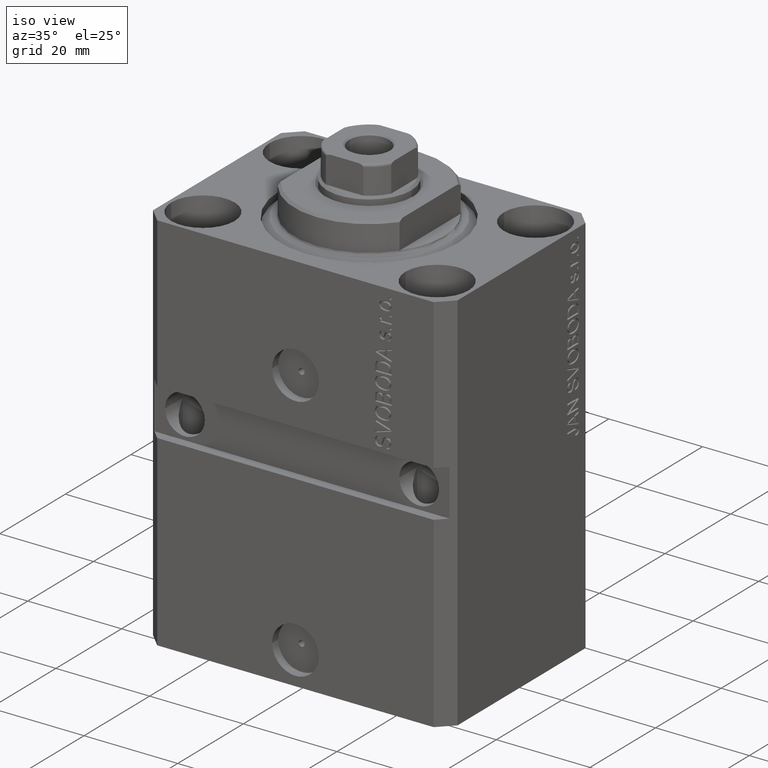
[diagram: clean part render]
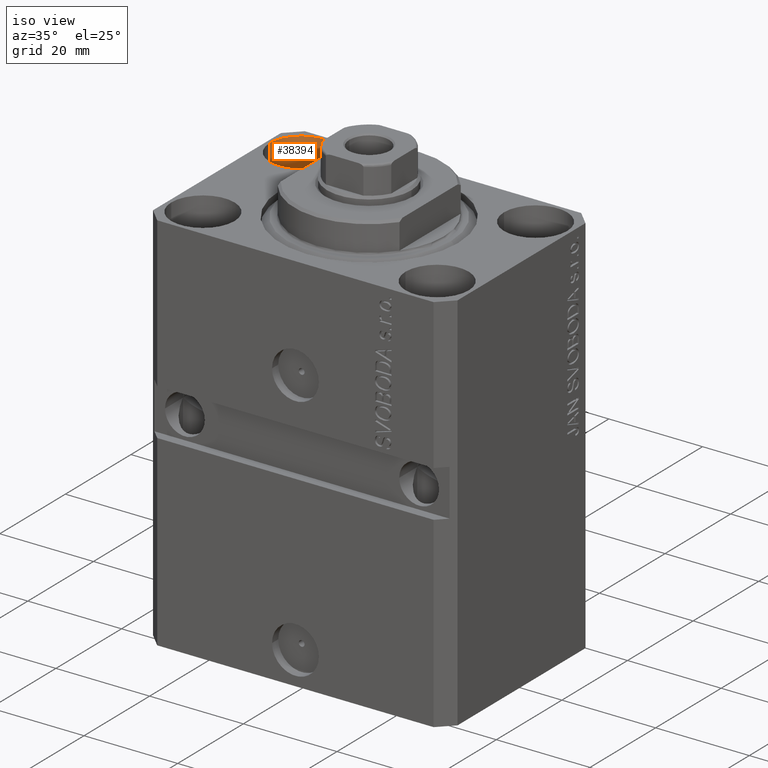
[diagram: same view with one face highlighted and labeled with its STEP entity id]
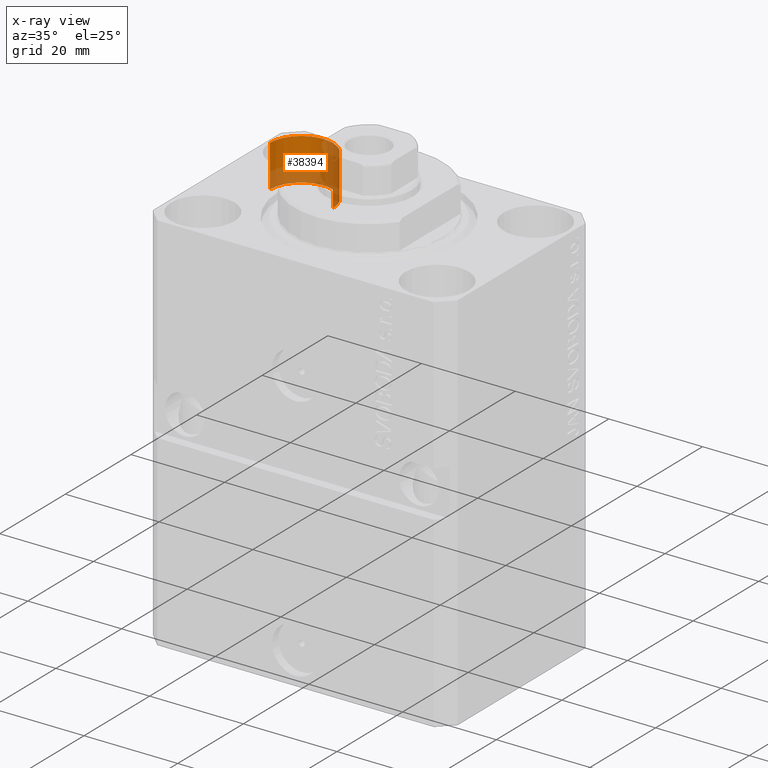
[diagram: x-ray of the same camera — body ghosted, the highlighted face saturated]
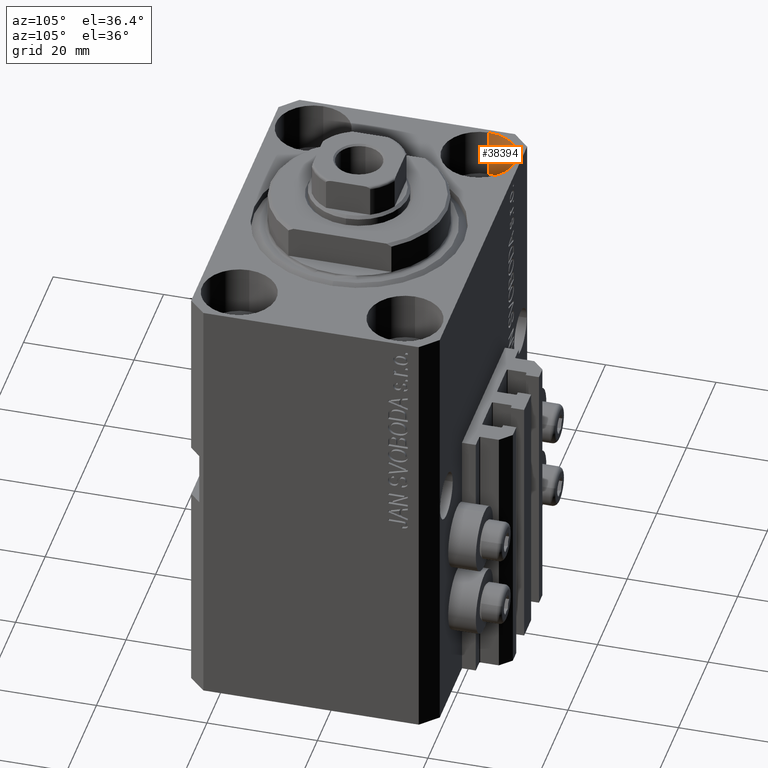
[diagram: same view with one face highlighted and labeled with its STEP entity id]
A machine part, iso view. The second image highlights one B-rep face of the part: STEP entity #38394.
The next image is the same camera in x-ray: the body ghosted, the highlighted face saturated — about 56% of this face is hidden behind the body in this view.
A second angle (auxiliary view) of the same face is appended — the face is thin or edge-on in the first view.
In plain terms, the highlighted cylindrical surface (partial cylindrical patch) has radius 6.75 mm, axis along (0, 0, 1).
Its self-contained STEP definition (entity closure, byte-faithful):
#208 = CARTESIAN_POINT ( 'NONE',  ( -25.00000000000000355, 15.00000000000000000, -9.000000000000000000 ) ) ;
#2404 = AXIS2_PLACEMENT_3D ( 'NONE', #41023, #45321, #12635 ) ;
#5400 = DIRECTION ( 'NONE',  ( -0.000000000000000000, -0.000000000000000000, 1.000000000000000000 ) ) ;
#11221 = ORIENTED_EDGE ( 'NONE', *, *, #34646, .F. ) ;
#11373 = VERTEX_POINT ( 'NONE', #27063 ) ;
#12635 = DIRECTION ( 'NONE',  ( 1.000000000000000000, 0.000000000000000000, 0.000000000000000000 ) ) ;
#13074 = DIRECTION ( 'NONE',  ( 0.000000000000000000, 0.000000000000000000, 1.000000000000000000 ) ) ;
#13114 = CIRCLE ( 'NONE', #45120, 6.750000000022533087 ) ;
#14310 = DIRECTION ( 'NONE',  ( 0.000000000000000000, 0.000000000000000000, 1.000000000000000000 ) ) ;
#14709 = ORIENTED_EDGE ( 'NONE', *, *, #32206, .F. ) ;
#16871 = DIRECTION ( 'NONE',  ( 1.000000000000000000, 0.000000000000000000, 0.000000000000000000 ) ) ;
#21509 = VERTEX_POINT ( 'NONE', #47065 ) ;
#23435 = CARTESIAN_POINT ( 'NONE',  ( -18.24999999997747224, 15.00000000000000000, -9.000000000000000000 ) ) ;
#23861 = VERTEX_POINT ( 'NONE', #23435 ) ;
#25110 = AXIS2_PLACEMENT_3D ( 'NONE', #208, #14310, #29287 ) ;
#26570 = VECTOR ( 'NONE', #5400, 1000.000000000000000 ) ;
#26905 = CARTESIAN_POINT ( 'NONE',  ( -25.00000000000000355, 15.00000000000000000, 0.000000000000000000 ) ) ;
#27063 = CARTESIAN_POINT ( 'NONE',  ( -31.75000000002253842, 15.00000000000000000, -9.000000000000000000 ) ) ;
#28540 = CARTESIAN_POINT ( 'NONE',  ( -18.24999999997747224, 15.00000000000000000, -9.000000000000000000 ) ) ;
#29287 = DIRECTION ( 'NONE',  ( 1.000000000000000000, 0.000000000000000000, 0.000000000000000000 ) ) ;
#30026 = CYLINDRICAL_SURFACE ( 'NONE', #2404, 6.750000000022533087 ) ;
#30746 = FACE_OUTER_BOUND ( 'NONE', #39764, .T. ) ;
#31005 = VERTEX_POINT ( 'NONE', #44141 ) ;
#31391 = LINE ( 'NONE', #45723, #26570 ) ;
#32206 = EDGE_CURVE ( 'NONE', #11373, #21509, #31391, .T. ) ;
#34646 = EDGE_CURVE ( 'NONE', #23861, #11373, #38846, .T. ) ;
#36718 = VECTOR ( 'NONE', #43571, 1000.000000000000000 ) ;
#38394 = ADVANCED_FACE ( 'NONE', ( #30746 ), #30026, .F. ) ;
#38846 = CIRCLE ( 'NONE', #25110, 6.750000000022533087 ) ;
#39726 = EDGE_CURVE ( 'NONE', #31005, #21509, #13114, .T. ) ;
#39764 = EDGE_LOOP ( 'NONE', ( #14709, #11221, #43550, #46698 ) ) ;
#39811 = EDGE_CURVE ( 'NONE', #23861, #31005, #46684, .T. ) ;
#41023 = CARTESIAN_POINT ( 'NONE',  ( -25.00000000000000355, 15.00000000000000000, -9.000000000000000000 ) ) ;
#43550 = ORIENTED_EDGE ( 'NONE', *, *, #39811, .T. ) ;
#43571 = DIRECTION ( 'NONE',  ( -0.000000000000000000, -0.000000000000000000, 1.000000000000000000 ) ) ;
#44141 = CARTESIAN_POINT ( 'NONE',  ( -18.24999999997747224, 15.00000000000000000, 0.000000000000000000 ) ) ;
#45120 = AXIS2_PLACEMENT_3D ( 'NONE', #26905, #13074, #16871 ) ;
#45321 = DIRECTION ( 'NONE',  ( -0.000000000000000000, -0.000000000000000000, 1.000000000000000000 ) ) ;
#45723 = CARTESIAN_POINT ( 'NONE',  ( -31.75000000002253842, 15.00000000000000000, -9.000000000000000000 ) ) ;
#46684 = LINE ( 'NONE', #28540, #36718 ) ;
#46698 = ORIENTED_EDGE ( 'NONE', *, *, #39726, .T. ) ;
#47065 = CARTESIAN_POINT ( 'NONE',  ( -31.75000000002253842, 15.00000000000000000, 0.000000000000000000 ) ) ;